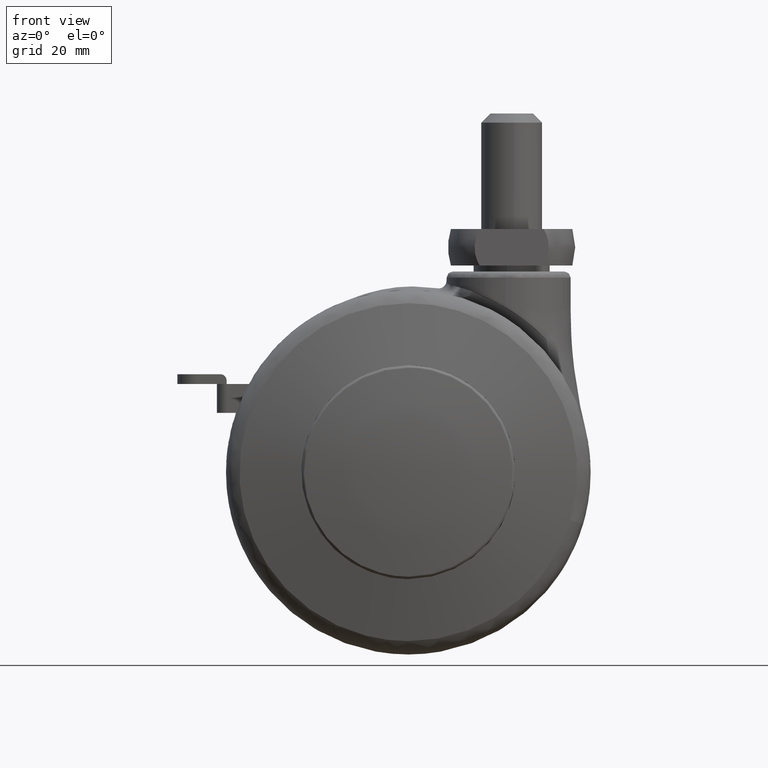
[diagram: clean part render]
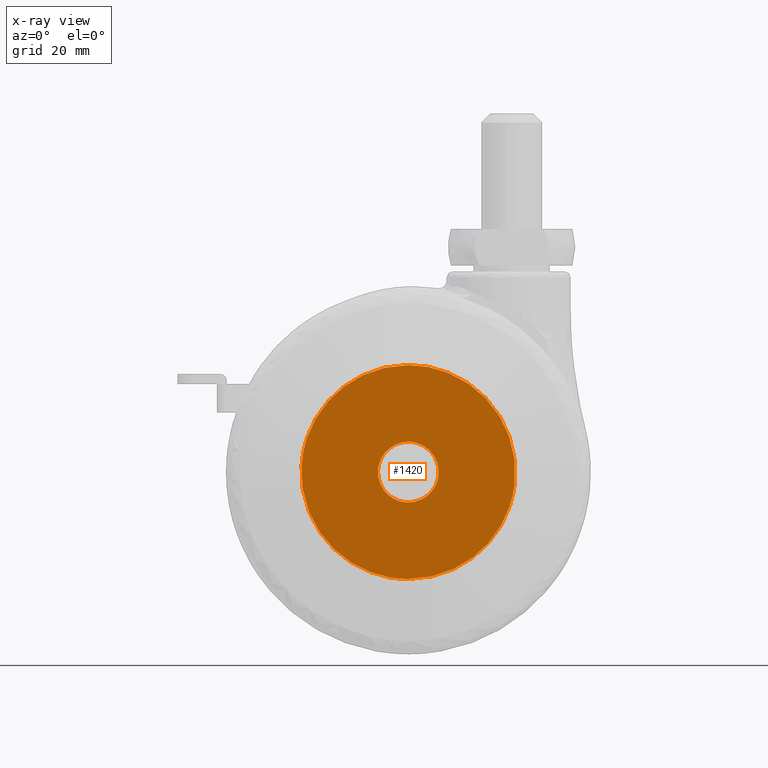
[diagram: x-ray — body ghosted, one internal face saturated and labeled with its STEP entity id]
A machine part, front view, then the same camera in x-ray: the body is ghosted and one INTERNAL B-rep face — a face not visible from any outside direction — is saturated and labeled: STEP entity #1420.
In plain terms, the highlighted face is a freeform B-spline surface patch.
Its self-contained STEP definition (entity closure, byte-faithful):
#100=CARTESIAN_POINT('',(-17.567173840123129,-17.423049182183451,1.074431603396188));
#101=VERTEX_POINT('',#100);
#107=CARTESIAN_POINT('',(0.0,-17.423049182183451,17.600000000000001));
#108=VERTEX_POINT('',#107);
#109=CARTESIAN_POINT('',(0.0,-17.423049182183451,17.600000000000001));
#110=CARTESIAN_POINT('',(-16.556448204302061,-17.423049182183455,17.599999999999994));
#111=CARTESIAN_POINT('',(-17.567173840123132,-17.423049182183444,1.074431603396188));
#119=(BOUNDED_CURVE()B_SPLINE_CURVE(2,(#109,#110,#111),.UNSPECIFIED.,.F.,.U.)B_SPLINE_CURVE_WITH_KNOTS((3,3),(0.500000000000000,0.739333185129540),.UNSPECIFIED.)CURVE()GEOMETRIC_REPRESENTATION_ITEM()RATIONAL_B_SPLINE_CURVE((1.0,0.719603732154133,0.976072519364162))REPRESENTATION_ITEM(''));
#120=EDGE_CURVE('',#108,#101,#119,.T.);
#122=CARTESIAN_POINT('',(17.476968989232208,-17.423049182183451,-2.077391380864396));
#123=VERTEX_POINT('',#122);
#124=CARTESIAN_POINT('',(17.476968989232208,-17.423049182183451,-2.077391380864396));
#125=CARTESIAN_POINT('',(17.600000000000001,-17.423049182183455,-1.042338872393473));
#126=CARTESIAN_POINT('',(17.600000000000001,-17.423049182183451,-1.653219E-015));
#127=CARTESIAN_POINT('',(17.600000000000005,-17.423049182183451,17.600000000000005));
#128=CARTESIAN_POINT('',(0.0,-17.423049182183451,17.600000000000001));
#136=(BOUNDED_CURVE()B_SPLINE_CURVE(2,(#124,#125,#126,#127,#128),.UNSPECIFIED.,.F.,.U.)B_SPLINE_CURVE_WITH_KNOTS((3,2,3),(0.229562581328013,0.250000000000000,0.500000000000000),.UNSPECIFIED.)CURVE()GEOMETRIC_REPRESENTATION_ITEM()RATIONAL_B_SPLINE_CURVE((0.956026965504650,0.976056074643694,1.0,0.707106781186548,1.0))REPRESENTATION_ITEM(''));
#137=EDGE_CURVE('',#123,#108,#136,.T.);
#181=CARTESIAN_POINT('',(0.0,-17.423049182183451,-17.600000000000001));
#182=VERTEX_POINT('',#181);
#183=CARTESIAN_POINT('',(0.0,-17.423049182183451,-17.600000000000001));
#184=CARTESIAN_POINT('',(15.631881698997375,-17.423049182183458,-17.600000000000001));
#185=CARTESIAN_POINT('',(17.476968989232208,-17.423049182183451,-2.077391380864396));
#193=(BOUNDED_CURVE()B_SPLINE_CURVE(2,(#183,#184,#185),.UNSPECIFIED.,.F.,.U.)B_SPLINE_CURVE_WITH_KNOTS((3,3),(0.0,0.229562581328013),.UNSPECIFIED.)CURVE()GEOMETRIC_REPRESENTATION_ITEM()RATIONAL_B_SPLINE_CURVE((1.0,0.731050706542853,0.956026965504650))REPRESENTATION_ITEM(''));
#194=EDGE_CURVE('',#182,#123,#193,.T.);
#196=CARTESIAN_POINT('',(-17.567173840123132,-17.423049182183444,1.074431603396188));
#197=CARTESIAN_POINT('',(-17.599999999999994,-17.423049182183448,0.537717256033972));
#198=CARTESIAN_POINT('',(-17.600000000000001,-17.423049182183451,-1.653219E-015));
#199=CARTESIAN_POINT('',(-17.600000000000005,-17.423049182183451,-17.600000000000005));
#200=CARTESIAN_POINT('',(0.0,-17.423049182183451,-17.600000000000001));
#208=(BOUNDED_CURVE()B_SPLINE_CURVE(2,(#196,#197,#198,#199,#200),.UNSPECIFIED.,.F.,.U.)B_SPLINE_CURVE_WITH_KNOTS((3,2,3),(0.739333185129540,0.750000000000000,1.0),.UNSPECIFIED.)CURVE()GEOMETRIC_REPRESENTATION_ITEM()RATIONAL_B_SPLINE_CURVE((0.976072519364162,0.987503049032415,1.0,0.707106781186548,1.0))REPRESENTATION_ITEM(''));
#209=EDGE_CURVE('',#101,#182,#208,.T.);
#252=CARTESIAN_POINT('',(4.965047631798729,-17.423049182183458,-0.590171173448705));
#253=VERTEX_POINT('',#252);
#254=CARTESIAN_POINT('',(0.0,-17.423049182183451,4.999999999999998));
#255=VERTEX_POINT('',#254);
#256=CARTESIAN_POINT('',(4.965047631798729,-17.423049182183451,-0.590171173448705));
#257=CARTESIAN_POINT('',(5.0,-17.423049182183448,-0.296120598426207));
#258=CARTESIAN_POINT('',(5.0,-17.423049182183451,-1.653219E-015));
#259=CARTESIAN_POINT('',(5.000000000000001,-17.423049182183451,4.999999999999997));
#260=CARTESIAN_POINT('',(0.0,-17.423049182183451,4.999999999999998));
#268=(BOUNDED_CURVE()B_SPLINE_CURVE(2,(#256,#257,#258,#259,#260),.UNSPECIFIED.,.F.,.U.)B_SPLINE_CURVE_WITH_KNOTS((3,2,3),(0.229562473504418,0.250000000000000,0.500000000000000),.UNSPECIFIED.)CURVE()GEOMETRIC_REPRESENTATION_ITEM()RATIONAL_B_SPLINE_CURVE((0.956026754165881,0.976055948320494,1.0,0.707106781186548,1.0))REPRESENTATION_ITEM(''));
#269=EDGE_CURVE('',#253,#255,#268,.T.);
#271=CARTESIAN_POINT('',(-4.990673992107483,-17.423049182183451,0.305242697704558));
#272=VERTEX_POINT('',#271);
#273=CARTESIAN_POINT('',(0.0,-17.423049182183451,4.999999999999998));
#274=CARTESIAN_POINT('',(-4.703530334471316,-17.423049182183458,4.999999999999998));
#275=CARTESIAN_POINT('',(-4.990673992107483,-17.423049182183451,0.305242697704558));
#283=(BOUNDED_CURVE()B_SPLINE_CURVE(2,(#273,#274,#275),.UNSPECIFIED.,.F.,.U.)B_SPLINE_CURVE_WITH_KNOTS((3,3),(0.500000000000000,0.739332962239875),.UNSPECIFIED.)CURVE()GEOMETRIC_REPRESENTATION_ITEM()RATIONAL_B_SPLINE_CURVE((1.0,0.719603993285618,0.976072041668716))REPRESENTATION_ITEM(''));
#284=EDGE_CURVE('',#255,#272,#283,.T.);
#351=CARTESIAN_POINT('',(0.0,-17.423049182183451,-5.000000000000002));
#352=VERTEX_POINT('',#351);
#353=CARTESIAN_POINT('',(0.0,-17.423049182183451,-5.000000000000002));
#354=CARTESIAN_POINT('',(4.440872629459760,-17.423049182183458,-5.000000000000002));
#355=CARTESIAN_POINT('',(4.965047631798729,-17.423049182183458,-0.590171173448705));
#363=(BOUNDED_CURVE()B_SPLINE_CURVE(2,(#353,#354,#355),.UNSPECIFIED.,.F.,.U.)B_SPLINE_CURVE_WITH_KNOTS((3,3),(0.0,0.229562473504418),.UNSPECIFIED.)CURVE()GEOMETRIC_REPRESENTATION_ITEM()RATIONAL_B_SPLINE_CURVE((1.0,0.731050832866053,0.956026754165881))REPRESENTATION_ITEM(''));
#364=EDGE_CURVE('',#352,#253,#363,.T.);
#398=CARTESIAN_POINT('',(-4.990673992107483,-17.423049182183451,0.305242697704558));
#399=CARTESIAN_POINT('',(-5.0,-17.423049182183448,0.152763816523302));
#400=CARTESIAN_POINT('',(-5.0,-17.423049182183451,-1.653219E-015));
#401=CARTESIAN_POINT('',(-5.000000000000001,-17.423049182183451,-5.000000000000002));
#402=CARTESIAN_POINT('',(0.0,-17.423049182183451,-5.000000000000002));
#410=(BOUNDED_CURVE()B_SPLINE_CURVE(2,(#398,#399,#400,#401,#402),.UNSPECIFIED.,.F.,.U.)B_SPLINE_CURVE_WITH_KNOTS((3,2,3),(0.739332962239875,0.750000000000000,1.0),.UNSPECIFIED.)CURVE()GEOMETRIC_REPRESENTATION_ITEM()RATIONAL_B_SPLINE_CURVE((0.976072041668715,0.987502787900929,1.0,0.707106781186548,1.0))REPRESENTATION_ITEM(''));
#411=EDGE_CURVE('',#272,#352,#410,.T.);
#1403=CARTESIAN_POINT('',(-19.357811563419300,-17.423049182183451,19.358240592640399));
#1404=CARTESIAN_POINT('',(-19.357811563419300,-17.423049182183451,-19.358240907352929));
#1405=CARTESIAN_POINT('',(19.357919824527698,-17.423049182183451,19.358240592640399));
#1406=CARTESIAN_POINT('',(19.357919824527698,-17.423049182183451,-19.358240907352929));
#1407=B_SPLINE_SURFACE_WITH_KNOTS('',1,1,((#1403,#1405),(#1404,#1406)),.UNSPECIFIED.,.F.,.F.,.U.,(2,2),(2,2),(0.0,38.716481499993321),(0.0,38.715731387947002),.UNSPECIFIED.);
#1408=ORIENTED_EDGE('',*,*,#194,.T.);
#1409=ORIENTED_EDGE('',*,*,#137,.T.);
#1410=ORIENTED_EDGE('',*,*,#120,.T.);
#1411=ORIENTED_EDGE('',*,*,#209,.T.);
#1412=EDGE_LOOP('',(#1408,#1409,#1410,#1411));
#1413=FACE_OUTER_BOUND('',#1412,.T.);
#1414=ORIENTED_EDGE('',*,*,#284,.F.);
#1415=ORIENTED_EDGE('',*,*,#269,.F.);
#1416=ORIENTED_EDGE('',*,*,#364,.F.);
#1417=ORIENTED_EDGE('',*,*,#411,.F.);
#1418=EDGE_LOOP('',(#1414,#1415,#1416,#1417));
#1419=FACE_BOUND('',#1418,.T.);
#1420=ADVANCED_FACE('',(#1413,#1419),#1407,.T.);